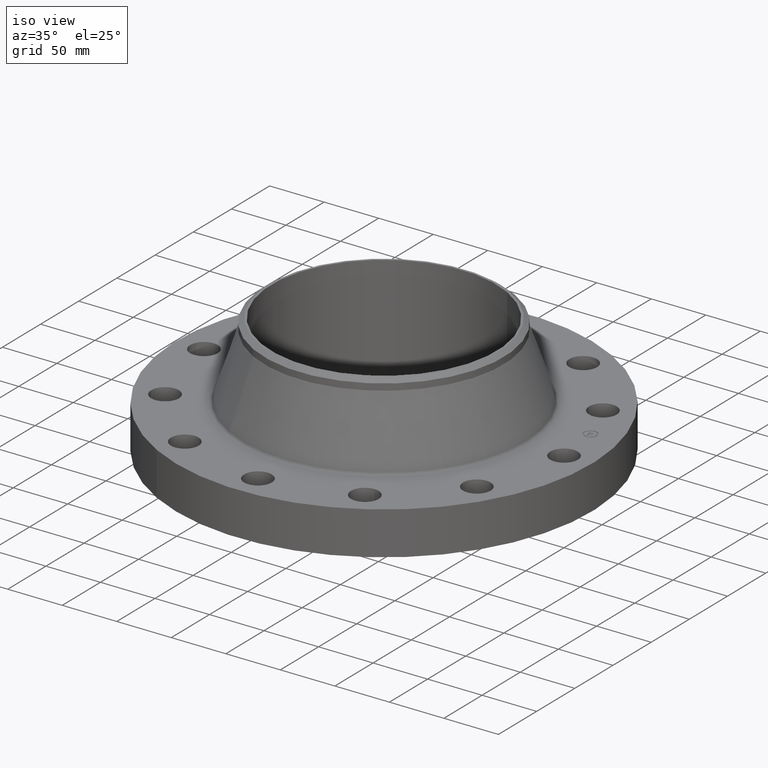
[diagram: clean part render]
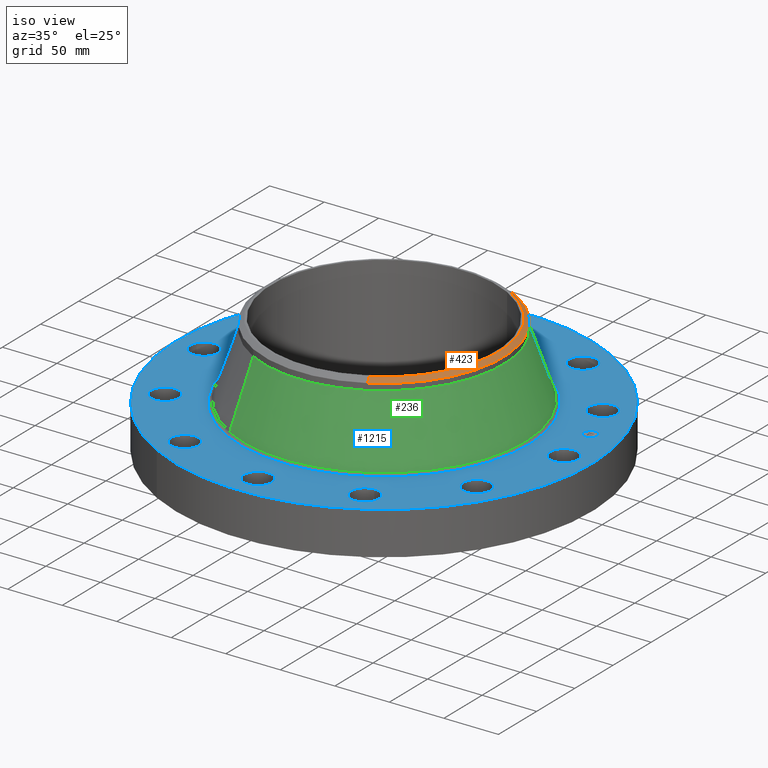
[diagram: same view with three faces highlighted in distinct colors, each labeled with its STEP entity id]
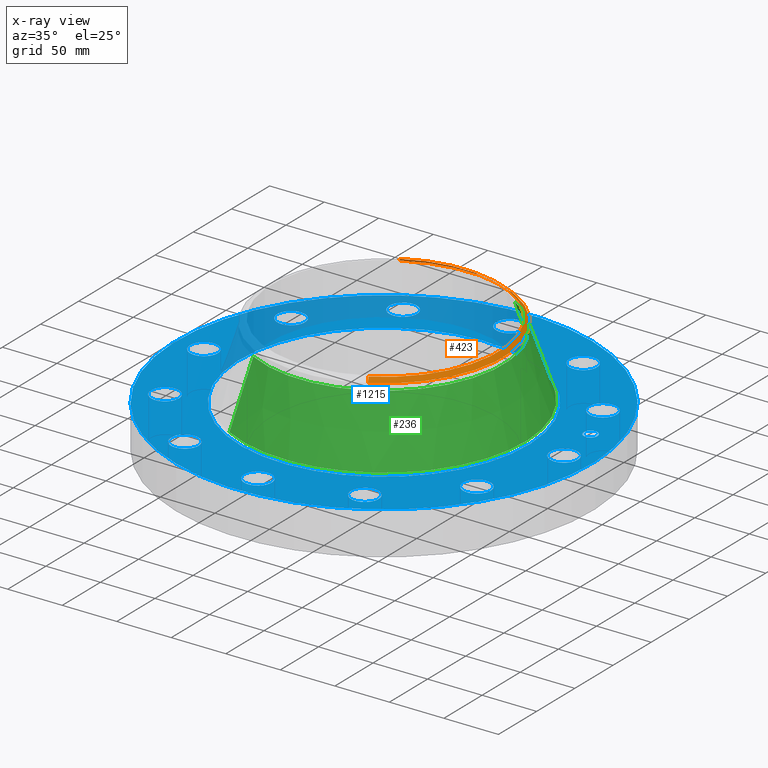
[diagram: x-ray of the same camera — body ghosted, the three highlighted faces saturated]
A machine part, iso view with three faces highlighted in distinct colors.
The next image is the same camera in x-ray (body ghosted, the three faces saturated) — at least one of them is partly hidden behind the body in this view.
Their STEP definitions:

[orange] entity #423 — the highlighted conical surface has half-angle 52.5 deg.
#270=AXIS2_PLACEMENT_3D('Circle Axis2P3D',#268,#269,$) ;
#297=AXIS2_PLACEMENT_3D('Circle Axis2P3D',#295,#296,$) ;
#311=AXIS2_PLACEMENT_3D('Cone Axis2P3D',#308,#309,#310) ;
#404=AXIS2_PLACEMENT_3D('Circle Axis2P3D',#402,#403,$) ;
#265=CARTESIAN_POINT('Vertex',(2.06872119909,3.78676875457,4.18666938342)) ;
#268=CARTESIAN_POINT('Axis2P3D Location',(0.,0.,4.18666938342)) ;
#272=CARTESIAN_POINT('Vertex',(2.06872119909,-3.78676875457,4.18666938342)) ;
#292=CARTESIAN_POINT('Vertex',(-2.06872119909,3.78676875457,4.18666938342)) ;
#295=CARTESIAN_POINT('Axis2P3D Location',(0.,0.,4.18666938342)) ;
#308=CARTESIAN_POINT('Axis2P3D Location',(0.,0.,4.32000000002)) ;
#313=CARTESIAN_POINT('Line Origine',(2.02706874604,-3.7105244507,4.25333469172)) ;
#317=CARTESIAN_POINT('Vertex',(1.985416293,-3.63428014682,4.32000000002)) ;
#324=CARTESIAN_POINT('Vertex',(-1.985416293,3.63428014682,4.32000000002)) ;
#327=CARTESIAN_POINT('Line Origine',(-2.02706874604,3.7105244507,4.25333469172)) ;
#402=CARTESIAN_POINT('Axis2P3D Location',(0.,0.,4.32000000002)) ;
#269=DIRECTION('Axis2P3D Direction',(0.,0.,-0.0393700787402)) ;
#296=DIRECTION('Axis2P3D Direction',(0.,0.,-0.0393700787402)) ;
#309=DIRECTION('Axis2P3D Direction',(-0.,-0.,-0.0393700787402)) ;
#310=DIRECTION('Axis2P3D XDirection',(-0.0188750212049,0.0345504945626,0.)) ;
#314=DIRECTION('Vector Direction',(0.014974561121,-0.02741075027,-0.023966985394)) ;
#328=DIRECTION('Vector Direction',(-0.014974561121,0.02741075027,-0.023966985394)) ;
#403=DIRECTION('Axis2P3D Direction',(0.,0.,-0.0393700787402)) ;
#315=VECTOR('Line Direction',#314,0.0393700787402) ;
#329=VECTOR('Line Direction',#328,0.0393700787402) ;
#417=ORIENTED_EDGE('',*,*,#331,.F.) ;
#418=ORIENTED_EDGE('',*,*,#406,.F.) ;
#419=ORIENTED_EDGE('',*,*,#319,.T.) ;
#420=ORIENTED_EDGE('',*,*,#274,.T.) ;
#421=ORIENTED_EDGE('',*,*,#299,.F.) ;
#423=ADVANCED_FACE('PartBody',(#422),#312,.T.) ;
#271=CIRCLE('generated circle',#270,4.31500000002) ;
#298=CIRCLE('generated circle',#297,4.31500000002) ;
#405=CIRCLE('generated circle',#404,4.1412401575) ;
#312=CONICAL_SURFACE('Cone',#311,4.1412401575,0.916297857297) ;
#274=EDGE_CURVE('',#273,#266,#271,.F.) ;
#299=EDGE_CURVE('',#293,#266,#298,.T.) ;
#319=EDGE_CURVE('',#318,#273,#316,.T.) ;
#331=EDGE_CURVE('',#325,#293,#330,.T.) ;
#406=EDGE_CURVE('',#318,#325,#405,.F.) ;
#416=EDGE_LOOP('',(#417,#418,#419,#420,#421)) ;
#422=FACE_OUTER_BOUND('',#416,.T.) ;
#316=LINE('Line',#313,#315) ;
#330=LINE('Line',#327,#329) ;
#266=VERTEX_POINT('',#265) ;
#273=VERTEX_POINT('',#272) ;
#293=VERTEX_POINT('',#292) ;
#318=VERTEX_POINT('',#317) ;
#325=VERTEX_POINT('',#324) ;

[blue] entity #1215 — the highlighted planar face has unit normal (0, 0, -1).
#65=AXIS2_PLACEMENT_3D('Circle Axis2P3D',#63,#64,$) ;
#82=AXIS2_PLACEMENT_3D('Circle Axis2P3D',#80,#81,$) ;
#115=AXIS2_PLACEMENT_3D('Circle Axis2P3D',#113,#114,$) ;
#139=AXIS2_PLACEMENT_3D('Circle Axis2P3D',#137,#138,$) ;
#156=AXIS2_PLACEMENT_3D('Circle Axis2P3D',#154,#155,$) ;
#191=AXIS2_PLACEMENT_3D('Circle Axis2P3D',#189,#190,$) ;
#684=AXIS2_PLACEMENT_3D('Circle Axis2P3D',#682,#683,$) ;
#696=AXIS2_PLACEMENT_3D('Circle Axis2P3D',#694,#695,$) ;
#727=AXIS2_PLACEMENT_3D('Circle Axis2P3D',#725,#726,$) ;
#739=AXIS2_PLACEMENT_3D('Circle Axis2P3D',#737,#738,$) ;
#770=AXIS2_PLACEMENT_3D('Circle Axis2P3D',#768,#769,$) ;
#782=AXIS2_PLACEMENT_3D('Circle Axis2P3D',#780,#781,$) ;
#813=AXIS2_PLACEMENT_3D('Circle Axis2P3D',#811,#812,$) ;
#825=AXIS2_PLACEMENT_3D('Circle Axis2P3D',#823,#824,$) ;
#856=AXIS2_PLACEMENT_3D('Circle Axis2P3D',#854,#855,$) ;
#868=AXIS2_PLACEMENT_3D('Circle Axis2P3D',#866,#867,$) ;
#899=AXIS2_PLACEMENT_3D('Circle Axis2P3D',#897,#898,$) ;
#911=AXIS2_PLACEMENT_3D('Circle Axis2P3D',#909,#910,$) ;
#942=AXIS2_PLACEMENT_3D('Circle Axis2P3D',#940,#941,$) ;
#954=AXIS2_PLACEMENT_3D('Circle Axis2P3D',#952,#953,$) ;
#985=AXIS2_PLACEMENT_3D('Circle Axis2P3D',#983,#984,$) ;
#997=AXIS2_PLACEMENT_3D('Circle Axis2P3D',#995,#996,$) ;
#1028=AXIS2_PLACEMENT_3D('Circle Axis2P3D',#1026,#1027,$) ;
#1040=AXIS2_PLACEMENT_3D('Circle Axis2P3D',#1038,#1039,$) ;
#1071=AXIS2_PLACEMENT_3D('Circle Axis2P3D',#1069,#1070,$) ;
#1083=AXIS2_PLACEMENT_3D('Circle Axis2P3D',#1081,#1082,$) ;
#1114=AXIS2_PLACEMENT_3D('Circle Axis2P3D',#1112,#1113,$) ;
#1126=AXIS2_PLACEMENT_3D('Circle Axis2P3D',#1124,#1125,$) ;
#1139=AXIS2_PLACEMENT_3D('Plane Axis2P3D',#1136,#1137,#1138) ;
#1199=AXIS2_PLACEMENT_3D('Circle Axis2P3D',#1197,#1198,$) ;
#1208=AXIS2_PLACEMENT_3D('Circle Axis2P3D',#1206,#1207,$) ;
#46=CARTESIAN_POINT('Vertex',(6.06120871908,0.239712769303,1.56000000001)) ;
#60=CARTESIAN_POINT('Vertex',(6.93879128097,-0.239712769303,1.56000000001)) ;
#63=CARTESIAN_POINT('Axis2P3D Location',(6.50000000003,0.,1.56000000001)) ;
#80=CARTESIAN_POINT('Axis2P3D Location',(6.50000000003,0.,1.56000000001)) ;
#110=CARTESIAN_POINT('Vertex',(-3.59569153955,-6.5818692142,1.56000000001)) ;
#113=CARTESIAN_POINT('Axis2P3D Location',(0.,0.,1.56000000001)) ;
#117=CARTESIAN_POINT('Vertex',(3.59569153955,6.5818692142,1.56000000001)) ;
#137=CARTESIAN_POINT('Axis2P3D Location',(0.,0.,1.56000000001)) ;
#154=CARTESIAN_POINT('Axis2P3D Location',(0.,0.,1.56000000001)) ;
#158=CARTESIAN_POINT('Vertex',(2.49830572048,4.57311794642,1.56000000001)) ;
#160=CARTESIAN_POINT('Vertex',(-2.49830572048,-4.57311794642,1.56000000001)) ;
#189=CARTESIAN_POINT('Axis2P3D Location',(0.,0.,1.56000000001)) ;
#672=CARTESIAN_POINT('Vertex',(-5.36901711301,2.82300701171,1.56000000001)) ;
#679=CARTESIAN_POINT('Vertex',(-5.88931313623,3.67699298831,1.56000000001)) ;
#682=CARTESIAN_POINT('Axis2P3D Location',(-5.62916512462,3.25000000001,1.56000000001)) ;
#694=CARTESIAN_POINT('Axis2P3D Location',(-5.62916512462,3.25000000001,1.56000000001)) ;
#715=CARTESIAN_POINT('Vertex',(3.23820170737,-5.12930434371,1.56000000001)) ;
#722=CARTESIAN_POINT('Vertex',(3.26179829266,-6.12902590553,1.56000000001)) ;
#725=CARTESIAN_POINT('Axis2P3D Location',(3.25000000001,-5.62916512462,1.56000000001)) ;
#737=CARTESIAN_POINT('Axis2P3D Location',(3.25000000001,-5.62916512462,1.56000000001)) ;
#758=CARTESIAN_POINT('Vertex',(-3.23820170737,5.12930434371,1.56000000001)) ;
#765=CARTESIAN_POINT('Vertex',(-3.26179829266,6.12902590553,1.56000000001)) ;
#768=CARTESIAN_POINT('Axis2P3D Location',(-3.25000000001,5.62916512462,1.56000000001)) ;
#780=CARTESIAN_POINT('Axis2P3D Location',(-3.25000000001,5.62916512462,1.56000000001)) ;
#801=CARTESIAN_POINT('Vertex',(0.239712769303,-6.06120871908,1.56000000001)) ;
#808=CARTESIAN_POINT('Vertex',(-0.239712769303,-6.93879128097,1.56000000001)) ;
#811=CARTESIAN_POINT('Axis2P3D Location',(-7.2095472848E-016,-6.50000000003,1.56000000001)) ;
#823=CARTESIAN_POINT('Axis2P3D Location',(-7.2095472848E-016,-6.50000000003,1.56000000001)) ;
#844=CARTESIAN_POINT('Vertex',(-0.239712769303,6.06120871908,1.56000000001)) ;
#851=CARTESIAN_POINT('Vertex',(0.239712769303,6.93879128097,1.56000000001)) ;
#854=CARTESIAN_POINT('Axis2P3D Location',(-1.19403062917E-015,6.50000000003,1.56000000001)) ;
#866=CARTESIAN_POINT('Axis2P3D Location',(-1.19403062917E-015,6.50000000003,1.56000000001)) ;
#887=CARTESIAN_POINT('Vertex',(-2.82300701171,-5.36901711301,1.56000000001)) ;
#894=CARTESIAN_POINT('Vertex',(-3.67699298831,-5.88931313623,1.56000000001)) ;
#897=CARTESIAN_POINT('Axis2P3D Location',(-3.25000000001,-5.62916512462,1.56000000001)) ;
#909=CARTESIAN_POINT('Axis2P3D Location',(-3.25000000001,-5.62916512462,1.56000000001)) ;
#930=CARTESIAN_POINT('Vertex',(2.82300701171,5.36901711301,1.56000000001)) ;
#937=CARTESIAN_POINT('Vertex',(3.67699298831,5.88931313623,1.56000000001)) ;
#940=CARTESIAN_POINT('Axis2P3D Location',(3.25000000001,5.62916512462,1.56000000001)) ;
#952=CARTESIAN_POINT('Axis2P3D Location',(3.25000000001,5.62916512462,1.56000000001)) ;
#973=CARTESIAN_POINT('Vertex',(-5.12930434371,-3.23820170737,1.56000000001)) ;
#980=CARTESIAN_POINT('Vertex',(-6.12902590553,-3.26179829266,1.56000000001)) ;
#983=CARTESIAN_POINT('Axis2P3D Location',(-5.62916512462,-3.25000000001,1.56000000001)) ;
#995=CARTESIAN_POINT('Axis2P3D Location',(-5.62916512462,-3.25000000001,1.56000000001)) ;
#1016=CARTESIAN_POINT('Vertex',(5.12930434371,3.23820170737,1.56000000001)) ;
#1023=CARTESIAN_POINT('Vertex',(6.12902590553,3.26179829266,1.56000000001)) ;
#1026=CARTESIAN_POINT('Axis2P3D Location',(5.62916512462,3.25000000001,1.56000000001)) ;
#1038=CARTESIAN_POINT('Axis2P3D Location',(5.62916512462,3.25000000001,1.56000000001)) ;
#1059=CARTESIAN_POINT('Vertex',(-6.06120871908,-0.239712769303,1.56000000001)) ;
#1066=CARTESIAN_POINT('Vertex',(-6.93879128097,0.239712769303,1.56000000001)) ;
#1069=CARTESIAN_POINT('Axis2P3D Location',(-6.50000000003,-7.96020419449E-016,1.56000000001)) ;
#1081=CARTESIAN_POINT('Axis2P3D Location',(-6.50000000003,-7.96020419449E-016,1.56000000001)) ;
#1102=CARTESIAN_POINT('Vertex',(5.36901711301,-2.82300701171,1.56000000001)) ;
#1109=CARTESIAN_POINT('Vertex',(5.88931313623,-3.67699298831,1.56000000001)) ;
#1112=CARTESIAN_POINT('Axis2P3D Location',(5.62916512462,-3.25000000001,1.56000000001)) ;
#1124=CARTESIAN_POINT('Axis2P3D Location',(5.62916512462,-3.25000000001,1.56000000001)) ;
#1136=CARTESIAN_POINT('Axis2P3D Location',(0.,7.50000000003,1.56000000001)) ;
#1197=CARTESIAN_POINT('Axis2P3D Location',(6.2785178709,1.68232379317,1.56000000001)) ;
#1201=CARTESIAN_POINT('Vertex',(6.21446015724,1.92139043518,1.56000000001)) ;
#1203=CARTESIAN_POINT('Vertex',(6.34257558457,1.44325715117,1.56000000001)) ;
#1206=CARTESIAN_POINT('Axis2P3D Location',(6.2785178709,1.68232379317,1.56000000001)) ;
#64=DIRECTION('Axis2P3D Direction',(0.,-0.,-0.0393700787402)) ;
#81=DIRECTION('Axis2P3D Direction',(0.,-0.,-0.0393700787402)) ;
#114=DIRECTION('Axis2P3D Direction',(0.,0.,-0.0393700787402)) ;
#138=DIRECTION('Axis2P3D Direction',(0.,0.,-0.0393700787402)) ;
#155=DIRECTION('Axis2P3D Direction',(0.,0.,-0.0393700787402)) ;
#190=DIRECTION('Axis2P3D Direction',(0.,0.,-0.0393700787402)) ;
#683=DIRECTION('Axis2P3D Direction',(0.,0.,-0.0393700787402)) ;
#695=DIRECTION('Axis2P3D Direction',(0.,0.,-0.0393700787402)) ;
#726=DIRECTION('Axis2P3D Direction',(0.,-0.,-0.0393700787402)) ;
#738=DIRECTION('Axis2P3D Direction',(0.,-0.,-0.0393700787402)) ;
#769=DIRECTION('Axis2P3D Direction',(0.,0.,-0.0393700787402)) ;
#781=DIRECTION('Axis2P3D Direction',(0.,0.,-0.0393700787402)) ;
#812=DIRECTION('Axis2P3D Direction',(0.,-0.,-0.0393700787402)) ;
#824=DIRECTION('Axis2P3D Direction',(0.,-0.,-0.0393700787402)) ;
#855=DIRECTION('Axis2P3D Direction',(0.,0.,-0.0393700787402)) ;
#867=DIRECTION('Axis2P3D Direction',(0.,0.,-0.0393700787402)) ;
#898=DIRECTION('Axis2P3D Direction',(-0.,0.,-0.0393700787402)) ;
#910=DIRECTION('Axis2P3D Direction',(-0.,0.,-0.0393700787402)) ;
#941=DIRECTION('Axis2P3D Direction',(0.,0.,-0.0393700787402)) ;
#953=DIRECTION('Axis2P3D Direction',(0.,0.,-0.0393700787402)) ;
#984=DIRECTION('Axis2P3D Direction',(-0.,0.,-0.0393700787402)) ;
#996=DIRECTION('Axis2P3D Direction',(-0.,0.,-0.0393700787402)) ;
#1027=DIRECTION('Axis2P3D Direction',(0.,0.,-0.0393700787402)) ;
#1039=DIRECTION('Axis2P3D Direction',(0.,0.,-0.0393700787402)) ;
#1070=DIRECTION('Axis2P3D Direction',(-0.,0.,-0.0393700787402)) ;
#1082=DIRECTION('Axis2P3D Direction',(-0.,0.,-0.0393700787402)) ;
#1113=DIRECTION('Axis2P3D Direction',(0.,-0.,-0.0393700787402)) ;
#1125=DIRECTION('Axis2P3D Direction',(0.,-0.,-0.0393700787402)) ;
#1137=DIRECTION('Axis2P3D Direction',(0.,0.,-0.0393700787402)) ;
#1138=DIRECTION('Axis2P3D XDirection',(0.0393700787402,0.,0.)) ;
#1198=DIRECTION('Axis2P3D Direction',(0.,0.,-0.0393700787402)) ;
#1207=DIRECTION('Axis2P3D Direction',(0.,0.,-0.0393700787402)) ;
#1142=ORIENTED_EDGE('',*,*,#141,.F.) ;
#1143=ORIENTED_EDGE('',*,*,#119,.F.) ;
#1146=ORIENTED_EDGE('',*,*,#67,.T.) ;
#1147=ORIENTED_EDGE('',*,*,#84,.T.) ;
#1150=ORIENTED_EDGE('',*,*,#193,.T.) ;
#1151=ORIENTED_EDGE('',*,*,#162,.T.) ;
#1154=ORIENTED_EDGE('',*,*,#1128,.T.) ;
#1155=ORIENTED_EDGE('',*,*,#1116,.T.) ;
#1158=ORIENTED_EDGE('',*,*,#741,.T.) ;
#1159=ORIENTED_EDGE('',*,*,#729,.T.) ;
#1162=ORIENTED_EDGE('',*,*,#827,.T.) ;
#1163=ORIENTED_EDGE('',*,*,#815,.T.) ;
#1166=ORIENTED_EDGE('',*,*,#913,.T.) ;
#1167=ORIENTED_EDGE('',*,*,#901,.T.) ;
#1170=ORIENTED_EDGE('',*,*,#999,.T.) ;
#1171=ORIENTED_EDGE('',*,*,#987,.T.) ;
#1174=ORIENTED_EDGE('',*,*,#1085,.T.) ;
#1175=ORIENTED_EDGE('',*,*,#1073,.T.) ;
#1178=ORIENTED_EDGE('',*,*,#698,.T.) ;
#1179=ORIENTED_EDGE('',*,*,#686,.T.) ;
#1182=ORIENTED_EDGE('',*,*,#784,.T.) ;
#1183=ORIENTED_EDGE('',*,*,#772,.T.) ;
#1186=ORIENTED_EDGE('',*,*,#870,.T.) ;
#1187=ORIENTED_EDGE('',*,*,#858,.T.) ;
#1190=ORIENTED_EDGE('',*,*,#956,.T.) ;
#1191=ORIENTED_EDGE('',*,*,#944,.T.) ;
#1194=ORIENTED_EDGE('',*,*,#1042,.T.) ;
#1195=ORIENTED_EDGE('',*,*,#1030,.T.) ;
#1212=ORIENTED_EDGE('',*,*,#1205,.T.) ;
#1213=ORIENTED_EDGE('',*,*,#1210,.T.) ;
#1148=FACE_BOUND('',#1145,.T.) ;
#1152=FACE_BOUND('',#1149,.T.) ;
#1156=FACE_BOUND('',#1153,.T.) ;
#1160=FACE_BOUND('',#1157,.T.) ;
#1164=FACE_BOUND('',#1161,.T.) ;
#1168=FACE_BOUND('',#1165,.T.) ;
#1172=FACE_BOUND('',#1169,.T.) ;
#1176=FACE_BOUND('',#1173,.T.) ;
#1180=FACE_BOUND('',#1177,.T.) ;
#1184=FACE_BOUND('',#1181,.T.) ;
#1188=FACE_BOUND('',#1185,.T.) ;
#1192=FACE_BOUND('',#1189,.T.) ;
#1196=FACE_BOUND('',#1193,.T.) ;
#1214=FACE_BOUND('',#1211,.T.) ;
#1215=ADVANCED_FACE('PartBody',(#1144,#1148,#1152,#1156,#1160,#1164,#1168,#1172,#1176,#1180,#1184,#1188,#1192,#1196,#1214),#1140,.F.) ;
#66=CIRCLE('generated circle',#65,0.500000000002) ;
#83=CIRCLE('generated circle',#82,0.500000000002) ;
#116=CIRCLE('generated circle',#115,7.50000000003) ;
#140=CIRCLE('generated circle',#139,7.50000000003) ;
#157=CIRCLE('generated circle',#156,5.21104012888) ;
#192=CIRCLE('generated circle',#191,5.21104012888) ;
#685=CIRCLE('generated circle',#684,0.500000000002) ;
#697=CIRCLE('generated circle',#696,0.500000000002) ;
#728=CIRCLE('generated circle',#727,0.500000000002) ;
#740=CIRCLE('generated circle',#739,0.500000000002) ;
#771=CIRCLE('generated circle',#770,0.500000000002) ;
#783=CIRCLE('generated circle',#782,0.500000000002) ;
#814=CIRCLE('generated circle',#813,0.500000000002) ;
#826=CIRCLE('generated circle',#825,0.500000000002) ;
#857=CIRCLE('generated circle',#856,0.500000000002) ;
#869=CIRCLE('generated circle',#868,0.500000000002) ;
#900=CIRCLE('generated circle',#899,0.500000000002) ;
#912=CIRCLE('generated circle',#911,0.500000000002) ;
#943=CIRCLE('generated circle',#942,0.500000000002) ;
#955=CIRCLE('generated circle',#954,0.500000000002) ;
#986=CIRCLE('generated circle',#985,0.500000000002) ;
#998=CIRCLE('generated circle',#997,0.500000000002) ;
#1029=CIRCLE('generated circle',#1028,0.500000000002) ;
#1041=CIRCLE('generated circle',#1040,0.500000000002) ;
#1072=CIRCLE('generated circle',#1071,0.500000000002) ;
#1084=CIRCLE('generated circle',#1083,0.500000000002) ;
#1115=CIRCLE('generated circle',#1114,0.500000000002) ;
#1127=CIRCLE('generated circle',#1126,0.500000000002) ;
#1200=CIRCLE('generated circle',#1199,0.247500000001) ;
#1209=CIRCLE('generated circle',#1208,0.247500000001) ;
#67=EDGE_CURVE('',#47,#61,#66,.T.) ;
#84=EDGE_CURVE('',#61,#47,#83,.T.) ;
#119=EDGE_CURVE('',#111,#118,#116,.T.) ;
#141=EDGE_CURVE('',#118,#111,#140,.T.) ;
#162=EDGE_CURVE('',#159,#161,#157,.T.) ;
#193=EDGE_CURVE('',#161,#159,#192,.T.) ;
#686=EDGE_CURVE('',#673,#680,#685,.T.) ;
#698=EDGE_CURVE('',#680,#673,#697,.T.) ;
#729=EDGE_CURVE('',#716,#723,#728,.T.) ;
#741=EDGE_CURVE('',#723,#716,#740,.T.) ;
#772=EDGE_CURVE('',#759,#766,#771,.T.) ;
#784=EDGE_CURVE('',#766,#759,#783,.T.) ;
#815=EDGE_CURVE('',#802,#809,#814,.T.) ;
#827=EDGE_CURVE('',#809,#802,#826,.T.) ;
#858=EDGE_CURVE('',#845,#852,#857,.T.) ;
#870=EDGE_CURVE('',#852,#845,#869,.T.) ;
#901=EDGE_CURVE('',#888,#895,#900,.T.) ;
#913=EDGE_CURVE('',#895,#888,#912,.T.) ;
#944=EDGE_CURVE('',#931,#938,#943,.T.) ;
#956=EDGE_CURVE('',#938,#931,#955,.T.) ;
#987=EDGE_CURVE('',#974,#981,#986,.T.) ;
#999=EDGE_CURVE('',#981,#974,#998,.T.) ;
#1030=EDGE_CURVE('',#1017,#1024,#1029,.T.) ;
#1042=EDGE_CURVE('',#1024,#1017,#1041,.T.) ;
#1073=EDGE_CURVE('',#1060,#1067,#1072,.T.) ;
#1085=EDGE_CURVE('',#1067,#1060,#1084,.T.) ;
#1116=EDGE_CURVE('',#1103,#1110,#1115,.T.) ;
#1128=EDGE_CURVE('',#1110,#1103,#1127,.T.) ;
#1205=EDGE_CURVE('',#1202,#1204,#1200,.T.) ;
#1210=EDGE_CURVE('',#1204,#1202,#1209,.T.) ;
#1141=EDGE_LOOP('',(#1142,#1143)) ;
#1145=EDGE_LOOP('',(#1146,#1147)) ;
#1149=EDGE_LOOP('',(#1150,#1151)) ;
#1153=EDGE_LOOP('',(#1154,#1155)) ;
#1157=EDGE_LOOP('',(#1158,#1159)) ;
#1161=EDGE_LOOP('',(#1162,#1163)) ;
#1165=EDGE_LOOP('',(#1166,#1167)) ;
#1169=EDGE_LOOP('',(#1170,#1171)) ;
#1173=EDGE_LOOP('',(#1174,#1175)) ;
#1177=EDGE_LOOP('',(#1178,#1179)) ;
#1181=EDGE_LOOP('',(#1182,#1183)) ;
#1185=EDGE_LOOP('',(#1186,#1187)) ;
#1189=EDGE_LOOP('',(#1190,#1191)) ;
#1193=EDGE_LOOP('',(#1194,#1195)) ;
#1211=EDGE_LOOP('',(#1212,#1213)) ;
#1144=FACE_OUTER_BOUND('',#1141,.T.) ;
#1140=PLANE('',#1139) ;
#47=VERTEX_POINT('',#46) ;
#61=VERTEX_POINT('',#60) ;
#111=VERTEX_POINT('',#110) ;
#118=VERTEX_POINT('',#117) ;
#159=VERTEX_POINT('',#158) ;
#161=VERTEX_POINT('',#160) ;
#673=VERTEX_POINT('',#672) ;
#680=VERTEX_POINT('',#679) ;
#716=VERTEX_POINT('',#715) ;
#723=VERTEX_POINT('',#722) ;
#759=VERTEX_POINT('',#758) ;
#766=VERTEX_POINT('',#765) ;
#802=VERTEX_POINT('',#801) ;
#809=VERTEX_POINT('',#808) ;
#845=VERTEX_POINT('',#844) ;
#852=VERTEX_POINT('',#851) ;
#888=VERTEX_POINT('',#887) ;
#895=VERTEX_POINT('',#894) ;
#931=VERTEX_POINT('',#930) ;
#938=VERTEX_POINT('',#937) ;
#974=VERTEX_POINT('',#973) ;
#981=VERTEX_POINT('',#980) ;
#1017=VERTEX_POINT('',#1016) ;
#1024=VERTEX_POINT('',#1023) ;
#1060=VERTEX_POINT('',#1059) ;
#1067=VERTEX_POINT('',#1066) ;
#1103=VERTEX_POINT('',#1102) ;
#1110=VERTEX_POINT('',#1109) ;
#1202=VERTEX_POINT('',#1201) ;
#1204=VERTEX_POINT('',#1203) ;

[green] entity #236 — the highlighted conical surface has half-angle 18.719 deg.
#172=AXIS2_PLACEMENT_3D('Circle Axis2P3D',#170,#171,$) ;
#209=AXIS2_PLACEMENT_3D('Cone Axis2P3D',#206,#207,#208) ;
#220=AXIS2_PLACEMENT_3D('Circle Axis2P3D',#218,#219,$) ;
#167=CARTESIAN_POINT('Vertex',(2.44381778329,4.47337844641,1.64148900369)) ;
#170=CARTESIAN_POINT('Axis2P3D Location',(0.,0.,1.64148900369)) ;
#174=CARTESIAN_POINT('Vertex',(-2.44381778329,-4.47337844641,1.64148900369)) ;
#206=CARTESIAN_POINT('Axis2P3D Location',(0.,0.,3.95044891098)) ;
#211=CARTESIAN_POINT('Line Origine',(2.25626949119,4.13007360049,2.79596895734)) ;
#215=CARTESIAN_POINT('Vertex',(2.06872119909,3.78676875457,3.95044891098)) ;
#218=CARTESIAN_POINT('Axis2P3D Location',(0.,0.,3.95044891098)) ;
#222=CARTESIAN_POINT('Vertex',(-2.06872119909,-3.78676875457,3.95044891098)) ;
#225=CARTESIAN_POINT('Line Origine',(-2.25626949119,-4.13007360049,2.79596895734)) ;
#171=DIRECTION('Axis2P3D Direction',(0.,0.,-0.0393700787402)) ;
#207=DIRECTION('Axis2P3D Direction',(0.,0.,-0.0393700787402)) ;
#208=DIRECTION('Axis2P3D XDirection',(-0.0188750212049,-0.0345504945626,0.)) ;
#212=DIRECTION('Vector Direction',(0.00605746560111,0.0110881164075,-0.0372875835236)) ;
#219=DIRECTION('Axis2P3D Direction',(0.,0.,-0.0393700787402)) ;
#226=DIRECTION('Vector Direction',(-0.00605746560111,-0.0110881164075,-0.0372875835236)) ;
#213=VECTOR('Line Direction',#212,0.0393700787402) ;
#227=VECTOR('Line Direction',#226,0.0393700787402) ;
#231=ORIENTED_EDGE('',*,*,#176,.F.) ;
#232=ORIENTED_EDGE('',*,*,#217,.T.) ;
#233=ORIENTED_EDGE('',*,*,#224,.T.) ;
#234=ORIENTED_EDGE('',*,*,#229,.F.) ;
#236=ADVANCED_FACE('PartBody',(#235),#210,.T.) ;
#173=CIRCLE('generated circle',#172,5.0973875743) ;
#221=CIRCLE('generated circle',#220,4.31500000002) ;
#210=CONICAL_SURFACE('Cone',#209,4.31500000002,0.326705954358) ;
#176=EDGE_CURVE('',#168,#175,#173,.T.) ;
#217=EDGE_CURVE('',#168,#216,#214,.F.) ;
#224=EDGE_CURVE('',#216,#223,#221,.T.) ;
#229=EDGE_CURVE('',#175,#223,#228,.F.) ;
#230=EDGE_LOOP('',(#231,#232,#233,#234)) ;
#235=FACE_OUTER_BOUND('',#230,.T.) ;
#214=LINE('Line',#211,#213) ;
#228=LINE('Line',#225,#227) ;
#168=VERTEX_POINT('',#167) ;
#175=VERTEX_POINT('',#174) ;
#216=VERTEX_POINT('',#215) ;
#223=VERTEX_POINT('',#222) ;